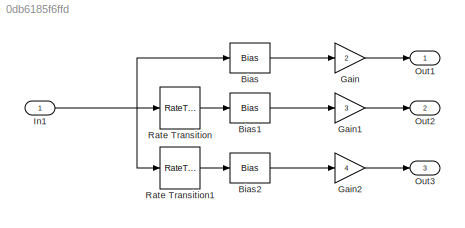
MODEL slx_0db6185f6ffd
KIND model
BLOCK [Bias] Bias
  Bias = 2
  SaturateOnIntegerOverflow = off
BLOCK [Bias] Bias1
  Bias = 3
  SaturateOnIntegerOverflow = off
BLOCK [Bias] Bias2
  Bias = 4
  SaturateOnIntegerOverflow = off
BLOCK [Gain] Gain
  Gain = 2
  OutDataTypeStr = uint8
  ParamDataTypeStr = Inherit: Inherit via internal rule
  SaturateOnIntegerOverflow = off
BLOCK [Gain] Gain1
  Gain = 3
  OutDataTypeStr = uint8
  ParamDataTypeStr = Inherit: Inherit via internal rule
  SaturateOnIntegerOverflow = off
BLOCK [Gain] Gain2
  Gain = 4
  OutDataTypeStr = uint8
  ParamDataTypeStr = Inherit: Inherit via internal rule
  SaturateOnIntegerOverflow = off
BLOCK [Inport] In1
  IconDisplay = Port number
  OutDataTypeStr = uint8
  PortDimensions = 1
  SampleTime = [0.01,0]
  SamplingMode = Sample based
  SignalType = real
BLOCK [Outport] Out1
  IconDisplay = Port number
  SamplingMode = Sample based
  SignalType = real
BLOCK [Outport] Out2
  IconDisplay = Port number
  Port = 2
  PortDimensions = 1
  SamplingMode = Sample based
  SignalType = real
BLOCK [Outport] Out3
  IconDisplay = Port number
  Port = 3
  SamplingMode = Sample based
  SignalType = real
BLOCK [RateTransition] Rate Transition
  OutPortSampleTime = 0.05
BLOCK [RateTransition] Rate Transition1
  OutPortSampleTime = 0.1
LINE Bias1:1 -> Gain1:1
LINE Bias2:1 -> Gain2:1
LINE Bias:1 -> Gain:1
LINE Gain1:1 -> Out2:1
LINE Gain2:1 -> Out3:1
LINE Gain:1 -> Out1:1
NET In1:1 -> Bias:1, Rate Transition1:1, Rate Transition:1
LINE Rate Transition1:1 -> Bias2:1
LINE Rate Transition:1 -> Bias1:1
note: NET lines group one-source signal fan-out (src -> all destinations, sorted); 1:1 wires keep LINE
